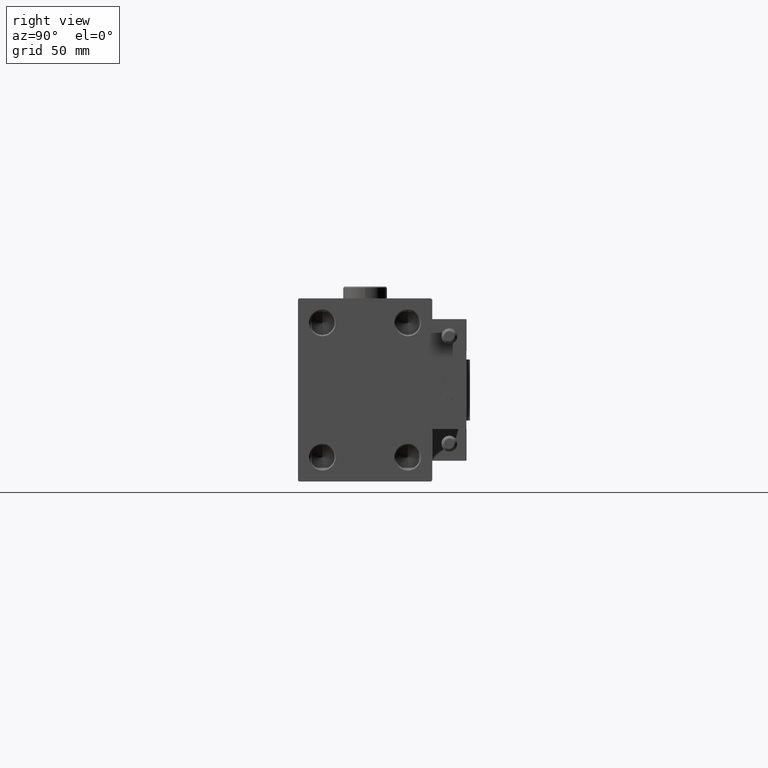
[diagram: clean part render]
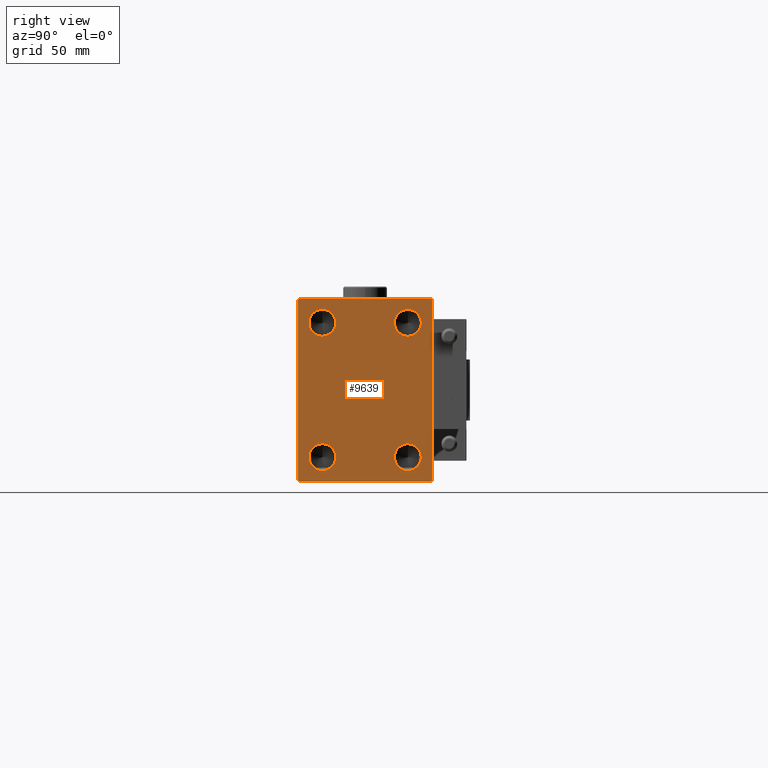
[diagram: same view with one face highlighted and labeled with its STEP entity id]
A machine part, right view. The second image highlights one B-rep face of the part: STEP entity #9639.
In plain terms, the highlighted planar face has unit normal (1, 0, 0).
Its self-contained STEP definition (entity closure, byte-faithful):
#208 = CARTESIAN_POINT ( 'NONE',  ( 175.0000000000000000, -27.49999999999999645, 37.49999999999998579 ) ) ;
#413 = CARTESIAN_POINT ( 'NONE',  ( 175.0000000000000000, -32.25000000000072475, 32.24999999999893419 ) ) ;
#553 = AXIS2_PLACEMENT_3D ( 'NONE', #18136, #46440, #30265 ) ;
#678 = CARTESIAN_POINT ( 'NONE',  ( 175.0000000000000000, 17.50000000000000000, 27.50000000000000000 ) ) ;
#1716 = ORIENTED_EDGE ( 'NONE', *, *, #37937, .F. ) ;
#2031 = CARTESIAN_POINT ( 'NONE',  ( 175.0000000000000000, 17.50000000000000000, 27.50000000000000000 ) ) ;
#2264 = CIRCLE ( 'NONE', #23762, 5.500000000000032863 ) ;
#3223 = CIRCLE ( 'NONE', #46246, 5.500000000000029310 ) ;
#3721 = VERTEX_POINT ( 'NONE', #23919 ) ;
#3992 = EDGE_LOOP ( 'NONE', ( #1716, #44486 ) ) ;
#4151 = CARTESIAN_POINT ( 'NONE',  ( 175.0000000000000000, 27.50000000000000355, -37.50000000000000000 ) ) ;
#4602 = CARTESIAN_POINT ( 'NONE',  ( 175.0000000000000000, -17.50000000000000000, 21.99999999999996447 ) ) ;
#4882 = CARTESIAN_POINT ( 'NONE',  ( 175.0000000000000000, 27.50000000000000355, -37.00000000000002842 ) ) ;
#4901 = EDGE_CURVE ( 'NONE', #18300, #47031, #31394, .T. ) ;
#4963 = EDGE_CURVE ( 'NONE', #47601, #37194, #29203, .T. ) ;
#5864 = ORIENTED_EDGE ( 'NONE', *, *, #53183, .T. ) ;
#5888 = DIRECTION ( 'NONE',  ( 0.000000000000000000, 0.000000000000000000, -1.000000000000000000 ) ) ;
#6024 = AXIS2_PLACEMENT_3D ( 'NONE', #52198, #43333, #5888 ) ;
#6525 = FACE_BOUND ( 'NONE', #41164, .T. ) ;
#8033 = CARTESIAN_POINT ( 'NONE',  ( 175.0000000000000000, -32.24999999999923261, -32.25000000000103029 ) ) ;
#8040 = CARTESIAN_POINT ( 'NONE',  ( 175.0000000000000000, 17.50000000000000000, -27.49999999999999645 ) ) ;
#8485 = DIRECTION ( 'NONE',  ( 0.000000000000000000, -0.7071067811865279218, -0.7071067811865672237 ) ) ;
#9495 = CIRCLE ( 'NONE', #24092, 5.500000000000032863 ) ;
#9639 = ADVANCED_FACE ( 'NONE', ( #34833, #6525, #43193, #29997, #18663 ), #38608, .T. ) ;
#9695 = DIRECTION ( 'NONE',  ( 0.000000000000000000, 1.000000000000000000, 0.000000000000000000 ) ) ;
#9834 = DIRECTION ( 'NONE',  ( 0.000000000000000000, 0.000000000000000000, -1.000000000000000000 ) ) ;
#11143 = VECTOR ( 'NONE', #26152, 1000.000000000000000 ) ;
#11172 = DIRECTION ( 'NONE',  ( 1.000000000000000000, -0.000000000000000000, -0.000000000000000000 ) ) ;
#11175 = VECTOR ( 'NONE', #31992, 1000.000000000000000 ) ;
#11373 = AXIS2_PLACEMENT_3D ( 'NONE', #43160, #34024, #35061 ) ;
#11639 = DIRECTION ( 'NONE',  ( 0.000000000000000000, 0.000000000000000000, -1.000000000000000000 ) ) ;
#11698 = DIRECTION ( 'NONE',  ( 0.000000000000000000, 0.000000000000000000, -1.000000000000000000 ) ) ;
#11737 = ORIENTED_EDGE ( 'NONE', *, *, #24170, .T. ) ;
#11962 = CARTESIAN_POINT ( 'NONE',  ( 175.0000000000000000, -17.50000000000000000, -27.49999999999999645 ) ) ;
#12318 = EDGE_CURVE ( 'NONE', #3721, #14979, #2264, .T. ) ;
#12325 = CIRCLE ( 'NONE', #34722, 5.500000000000029310 ) ;
#12594 = LINE ( 'NONE', #208, #13078 ) ;
#13078 = VECTOR ( 'NONE', #29836, 1000.000000000000000 ) ;
#13876 = ORIENTED_EDGE ( 'NONE', *, *, #41320, .F. ) ;
#14546 = LINE ( 'NONE', #30987, #11143 ) ;
#14979 = VERTEX_POINT ( 'NONE', #51088 ) ;
#15592 = LINE ( 'NONE', #8033, #51971 ) ;
#15934 = VERTEX_POINT ( 'NONE', #33505 ) ;
#16092 = EDGE_LOOP ( 'NONE', ( #40620, #34491 ) ) ;
#17106 = DIRECTION ( 'NONE',  ( 0.000000000000000000, 0.000000000000000000, -1.000000000000000000 ) ) ;
#18136 = CARTESIAN_POINT ( 'NONE',  ( 175.0000000000000000, 0.000000000000000000, 0.000000000000000000 ) ) ;
#18300 = VERTEX_POINT ( 'NONE', #42263 ) ;
#18663 = FACE_OUTER_BOUND ( 'NONE', #21768, .T. ) ;
#19254 = CARTESIAN_POINT ( 'NONE',  ( 175.0000000000000000, 27.00000000000003197, -37.50000000000000000 ) ) ;
#19585 = LINE ( 'NONE', #44637, #11175 ) ;
#20803 = CARTESIAN_POINT ( 'NONE',  ( 175.0000000000000000, 27.49999999999999645, 37.00000000000000000 ) ) ;
#21013 = VERTEX_POINT ( 'NONE', #32853 ) ;
#21768 = EDGE_LOOP ( 'NONE', ( #52322, #26562, #28787, #5864, #25926, #11737, #38776, #48383 ) ) ;
#22334 = LINE ( 'NONE', #25858, #29267 ) ;
#22371 = DIRECTION ( 'NONE',  ( 1.000000000000000000, -0.000000000000000000, -0.000000000000000000 ) ) ;
#22457 = VERTEX_POINT ( 'NONE', #22993 ) ;
#22993 = CARTESIAN_POINT ( 'NONE',  ( 175.0000000000000000, -26.99999999999996803, 37.49999999999998579 ) ) ;
#23762 = AXIS2_PLACEMENT_3D ( 'NONE', #8040, #52501, #48731 ) ;
#23919 = CARTESIAN_POINT ( 'NONE',  ( 175.0000000000000000, 17.50000000000000000, -33.00000000000002842 ) ) ;
#24087 = CIRCLE ( 'NONE', #6024, 5.500000000000029310 ) ;
#24092 = AXIS2_PLACEMENT_3D ( 'NONE', #38555, #22371, #35309 ) ;
#24170 = EDGE_CURVE ( 'NONE', #35991, #47601, #41239, .T. ) ;
#24171 = VECTOR ( 'NONE', #8485, 1000.000000000000000 ) ;
#24273 = EDGE_CURVE ( 'NONE', #48389, #35991, #22334, .T. ) ;
#25718 = DIRECTION ( 'NONE',  ( 1.000000000000000000, -0.000000000000000000, -0.000000000000000000 ) ) ;
#25858 = CARTESIAN_POINT ( 'NONE',  ( 175.0000000000000000, -27.49999999999999645, -37.50000000000000000 ) ) ;
#25889 = EDGE_CURVE ( 'NONE', #47031, #18300, #26746, .T. ) ;
#25926 = ORIENTED_EDGE ( 'NONE', *, *, #24273, .T. ) ;
#26152 = DIRECTION ( 'NONE',  ( -0.000000000000000000, -0.7071067811865279218, 0.7071067811865671127 ) ) ;
#26562 = ORIENTED_EDGE ( 'NONE', *, *, #42868, .T. ) ;
#26746 = CIRCLE ( 'NONE', #31070, 5.500000000000032863 ) ;
#28680 = ORIENTED_EDGE ( 'NONE', *, *, #4901, .F. ) ;
#28787 = ORIENTED_EDGE ( 'NONE', *, *, #44820, .T. ) ;
#28837 = DIRECTION ( 'NONE',  ( -0.000000000000000000, 0.7071067811865474617, 0.7071067811865474617 ) ) ;
#29203 = LINE ( 'NONE', #4151, #34818 ) ;
#29226 = LINE ( 'NONE', #413, #24171 ) ;
#29267 = VECTOR ( 'NONE', #9695, 1000.000000000000000 ) ;
#29836 = DIRECTION ( 'NONE',  ( 0.000000000000000000, 0.000000000000000000, -1.000000000000000000 ) ) ;
#29997 = FACE_BOUND ( 'NONE', #3992, .T. ) ;
#30265 = DIRECTION ( 'NONE',  ( 0.000000000000000000, 0.000000000000000000, -1.000000000000000000 ) ) ;
#30987 = CARTESIAN_POINT ( 'NONE',  ( 175.0000000000000000, 32.25000000000076028, 32.24999999999897682 ) ) ;
#31070 = AXIS2_PLACEMENT_3D ( 'NONE', #50780, #34363, #9834 ) ;
#31347 = VERTEX_POINT ( 'NONE', #44511 ) ;
#31355 = EDGE_LOOP ( 'NONE', ( #49998, #28680 ) ) ;
#31394 = CIRCLE ( 'NONE', #36553, 5.500000000000032863 ) ;
#31992 = DIRECTION ( 'NONE',  ( 0.000000000000000000, -1.000000000000000000, -2.523234146875355998E-16 ) ) ;
#32296 = EDGE_CURVE ( 'NONE', #21013, #15934, #3223, .T. ) ;
#32853 = CARTESIAN_POINT ( 'NONE',  ( 175.0000000000000000, 17.50000000000000000, 21.99999999999996447 ) ) ;
#33428 = ORIENTED_EDGE ( 'NONE', *, *, #45664, .F. ) ;
#33505 = CARTESIAN_POINT ( 'NONE',  ( 175.0000000000000000, 17.50000000000000000, 33.00000000000004263 ) ) ;
#34024 = DIRECTION ( 'NONE',  ( 1.000000000000000000, -0.000000000000000000, -0.000000000000000000 ) ) ;
#34363 = DIRECTION ( 'NONE',  ( 1.000000000000000000, -0.000000000000000000, -0.000000000000000000 ) ) ;
#34491 = ORIENTED_EDGE ( 'NONE', *, *, #32296, .F. ) ;
#34613 = CIRCLE ( 'NONE', #11373, 5.500000000000029310 ) ;
#34722 = AXIS2_PLACEMENT_3D ( 'NONE', #678, #25718, #17106 ) ;
#34818 = VECTOR ( 'NONE', #41877, 1000.000000000000000 ) ;
#34833 = FACE_BOUND ( 'NONE', #16092, .T. ) ;
#35061 = DIRECTION ( 'NONE',  ( 0.000000000000000000, 0.000000000000000000, -1.000000000000000000 ) ) ;
#35309 = DIRECTION ( 'NONE',  ( 0.000000000000000000, 0.000000000000000000, -1.000000000000000000 ) ) ;
#35991 = VERTEX_POINT ( 'NONE', #19254 ) ;
#36553 = AXIS2_PLACEMENT_3D ( 'NONE', #11962, #11172, #11698 ) ;
#36949 = CARTESIAN_POINT ( 'NONE',  ( 175.0000000000000000, -26.99999999999996803, -37.50000000000000000 ) ) ;
#37194 = VERTEX_POINT ( 'NONE', #20803 ) ;
#37208 = EDGE_CURVE ( 'NONE', #37194, #50590, #14546, .T. ) ;
#37793 = VERTEX_POINT ( 'NONE', #40490 ) ;
#37937 = EDGE_CURVE ( 'NONE', #14979, #3721, #9495, .T. ) ;
#38555 = CARTESIAN_POINT ( 'NONE',  ( 175.0000000000000000, 17.50000000000000000, -27.49999999999999645 ) ) ;
#38608 = PLANE ( 'NONE',  #553 ) ;
#38776 = ORIENTED_EDGE ( 'NONE', *, *, #4963, .T. ) ;
#39858 = CARTESIAN_POINT ( 'NONE',  ( 175.0000000000000000, -17.50000000000000000, -21.99999999999996092 ) ) ;
#40490 = CARTESIAN_POINT ( 'NONE',  ( 175.0000000000000000, -17.50000000000000000, 33.00000000000004263 ) ) ;
#40620 = ORIENTED_EDGE ( 'NONE', *, *, #51533, .F. ) ;
#40973 = CARTESIAN_POINT ( 'NONE',  ( 175.0000000000000000, 32.25000000000001421, -32.25000000000001421 ) ) ;
#41154 = EDGE_CURVE ( 'NONE', #50590, #22457, #19585, .T. ) ;
#41164 = EDGE_LOOP ( 'NONE', ( #13876, #33428 ) ) ;
#41239 = LINE ( 'NONE', #40973, #43923 ) ;
#41320 = EDGE_CURVE ( 'NONE', #37793, #45817, #24087, .T. ) ;
#41877 = DIRECTION ( 'NONE',  ( 0.000000000000000000, -9.251858538542971581E-17, 1.000000000000000000 ) ) ;
#42263 = CARTESIAN_POINT ( 'NONE',  ( 175.0000000000000000, -17.50000000000000000, -33.00000000000002842 ) ) ;
#42868 = EDGE_CURVE ( 'NONE', #22457, #49314, #29226, .T. ) ;
#43160 = CARTESIAN_POINT ( 'NONE',  ( 175.0000000000000000, -17.50000000000000000, 27.50000000000000000 ) ) ;
#43193 = FACE_BOUND ( 'NONE', #31355, .T. ) ;
#43333 = DIRECTION ( 'NONE',  ( 1.000000000000000000, -0.000000000000000000, -0.000000000000000000 ) ) ;
#43923 = VECTOR ( 'NONE', #28837, 1000.000000000000114 ) ;
#44486 = ORIENTED_EDGE ( 'NONE', *, *, #12318, .F. ) ;
#44511 = CARTESIAN_POINT ( 'NONE',  ( 175.0000000000000000, -27.49999999999999645, -37.00000000000000000 ) ) ;
#44637 = CARTESIAN_POINT ( 'NONE',  ( 175.0000000000000000, 27.49999999999999645, 37.50000000000000000 ) ) ;
#44820 = EDGE_CURVE ( 'NONE', #49314, #31347, #12594, .T. ) ;
#45392 = CARTESIAN_POINT ( 'NONE',  ( 175.0000000000000000, 27.00000000000002487, 37.50000000000000000 ) ) ;
#45664 = EDGE_CURVE ( 'NONE', #45817, #37793, #34613, .T. ) ;
#45817 = VERTEX_POINT ( 'NONE', #4602 ) ;
#46246 = AXIS2_PLACEMENT_3D ( 'NONE', #2031, #53121, #11639 ) ;
#46440 = DIRECTION ( 'NONE',  ( 1.000000000000000000, 0.000000000000000000, 0.000000000000000000 ) ) ;
#46642 = CARTESIAN_POINT ( 'NONE',  ( 175.0000000000000000, -27.49999999999999645, 36.99999999999992895 ) ) ;
#47031 = VERTEX_POINT ( 'NONE', #39858 ) ;
#47601 = VERTEX_POINT ( 'NONE', #4882 ) ;
#48181 = DIRECTION ( 'NONE',  ( -0.000000000000000000, 0.7071067811865672237, -0.7071067811865279218 ) ) ;
#48383 = ORIENTED_EDGE ( 'NONE', *, *, #37208, .T. ) ;
#48389 = VERTEX_POINT ( 'NONE', #36949 ) ;
#48731 = DIRECTION ( 'NONE',  ( 0.000000000000000000, 0.000000000000000000, -1.000000000000000000 ) ) ;
#49314 = VERTEX_POINT ( 'NONE', #46642 ) ;
#49998 = ORIENTED_EDGE ( 'NONE', *, *, #25889, .F. ) ;
#50590 = VERTEX_POINT ( 'NONE', #45392 ) ;
#50780 = CARTESIAN_POINT ( 'NONE',  ( 175.0000000000000000, -17.50000000000000000, -27.49999999999999645 ) ) ;
#51088 = CARTESIAN_POINT ( 'NONE',  ( 175.0000000000000000, 17.50000000000000000, -21.99999999999996092 ) ) ;
#51533 = EDGE_CURVE ( 'NONE', #15934, #21013, #12325, .T. ) ;
#51971 = VECTOR ( 'NONE', #48181, 1000.000000000000000 ) ;
#52198 = CARTESIAN_POINT ( 'NONE',  ( 175.0000000000000000, -17.50000000000000000, 27.50000000000000000 ) ) ;
#52322 = ORIENTED_EDGE ( 'NONE', *, *, #41154, .T. ) ;
#52501 = DIRECTION ( 'NONE',  ( 1.000000000000000000, -0.000000000000000000, -0.000000000000000000 ) ) ;
#53121 = DIRECTION ( 'NONE',  ( 1.000000000000000000, -0.000000000000000000, -0.000000000000000000 ) ) ;
#53183 = EDGE_CURVE ( 'NONE', #31347, #48389, #15592, .T. ) ;